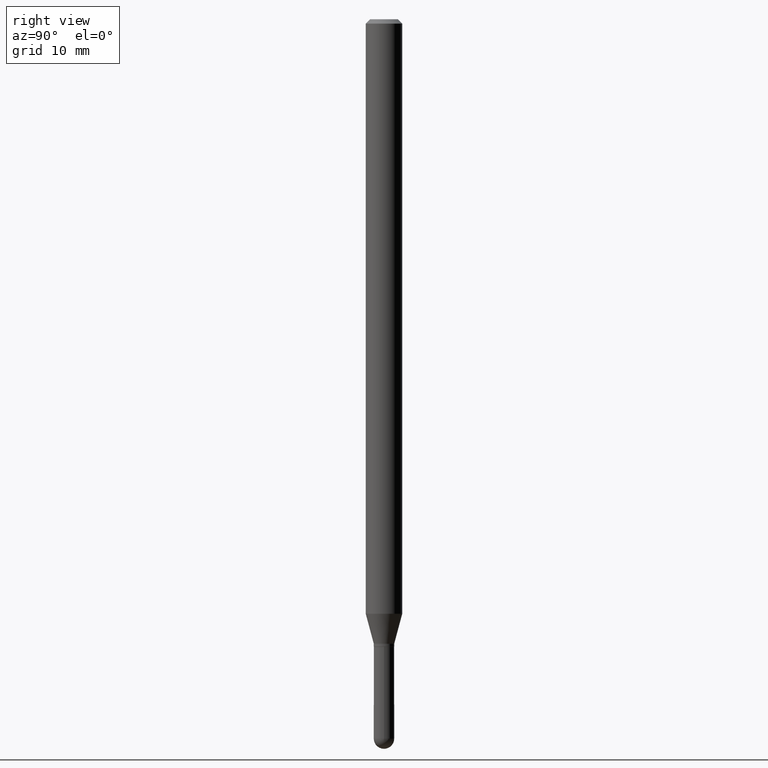
[diagram: clean part render]
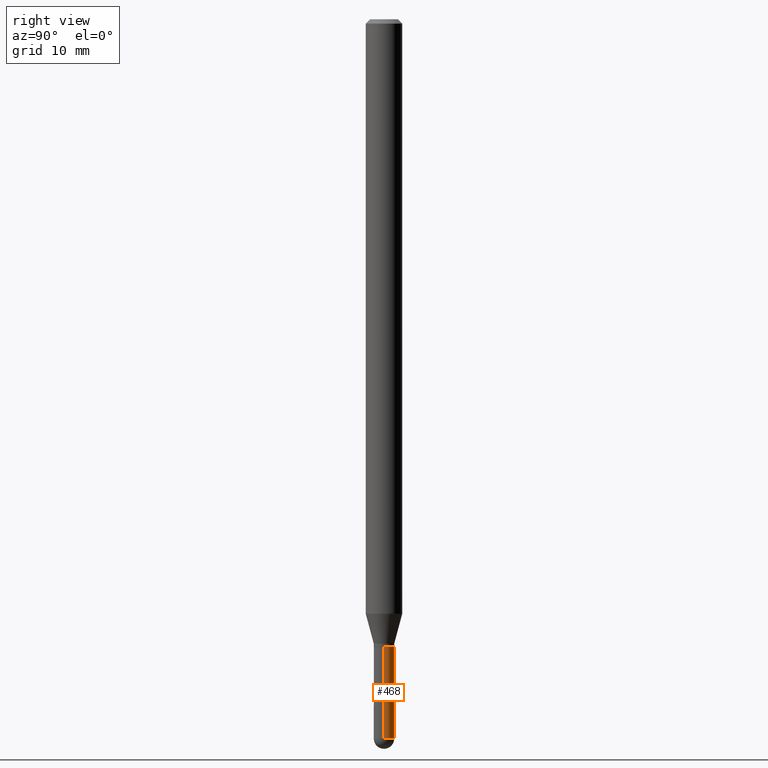
[diagram: same view with one face highlighted and labeled with its STEP entity id]
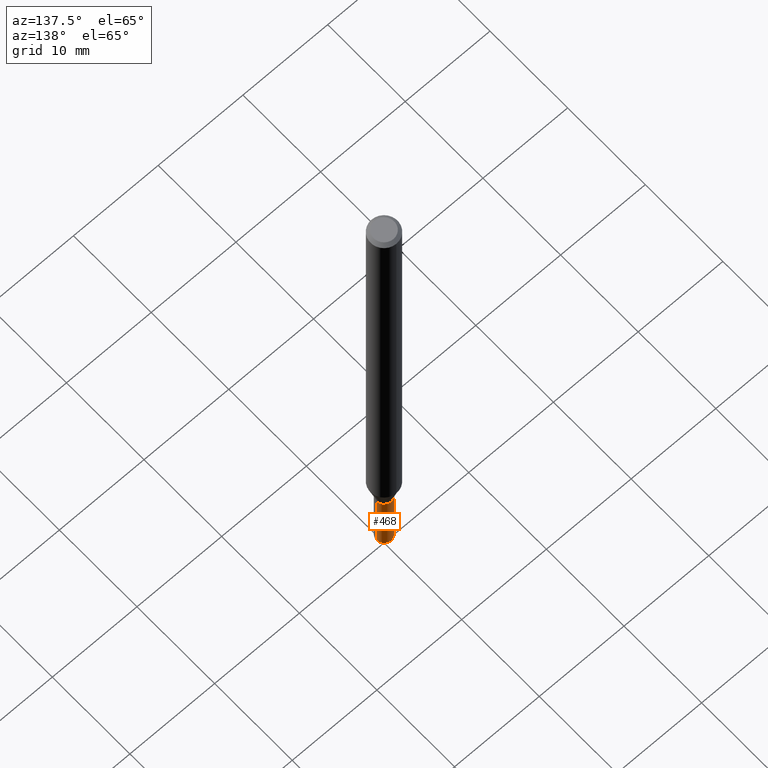
[diagram: same view with one face highlighted and labeled with its STEP entity id]
A machine part, right view. The second image highlights one B-rep face of the part: STEP entity #468.
A second angle (auxiliary view) of the same face is appended — the face is thin or edge-on in the first view.
In plain terms, the highlighted cylindrical surface (edge-blend (fillet) strip) has radius 0.889 mm, axis along (-0, 0, 1).
Its self-contained STEP definition (entity closure, byte-faithful):
#14 = VERTEX_POINT ( 'NONE', #160 ) ;
#17 = ORIENTED_EDGE ( 'NONE', *, *, #63, .T. ) ;
#21 = CIRCLE ( 'NONE', #248, 0.03500000000000000333 ) ;
#30 = LINE ( 'NONE', #185, #233 ) ;
#45 = ORIENTED_EDGE ( 'NONE', *, *, #245, .F. ) ;
#46 = LINE ( 'NONE', #403, #100 ) ;
#63 = EDGE_CURVE ( 'NONE', #488, #496, #46, .T. ) ;
#81 = CARTESIAN_POINT ( 'NONE',  ( -0.03500000000000000333, -7.807903231864523961E-15, -2.150000000000000355 ) ) ;
#100 = VECTOR ( 'NONE', #212, 39.37007874015748143 ) ;
#137 = DIRECTION ( 'NONE',  ( 1.000000000000000000, -6.982962677686248567E-15, 0.000000000000000000 ) ) ;
#141 = DIRECTION ( 'NONE',  ( -2.445468806185136597E-29, 3.491481338843145583E-15, 1.000000000000000000 ) ) ;
#151 = AXIS2_PLACEMENT_3D ( 'NONE', #264, #298, #381 ) ;
#152 = DIRECTION ( 'NONE',  ( -2.445468806185136877E-29, 3.491481338843145188E-15, 1.000000000000000000 ) ) ;
#157 = CIRCLE ( 'NONE', #291, 0.03500000000000000333 ) ;
#159 = DIRECTION ( 'NONE',  ( 1.000000000000000000, -6.982962677686265922E-15, 4.876176775795936353E-29 ) ) ;
#160 = CARTESIAN_POINT ( 'NONE',  ( 0.03500000000000000333, -8.300996883099578424E-15, -2.464999999999999858 ) ) ;
#163 = VERTEX_POINT ( 'NONE', #393 ) ;
#176 = FACE_OUTER_BOUND ( 'NONE', #441, .T. ) ;
#181 = CYLINDRICAL_SURFACE ( 'NONE', #273, 0.03500000000000000333 ) ;
#185 = CARTESIAN_POINT ( 'NONE',  ( 0.03500000000000000333, -2.444036937190193250E-16, 1.706661871528577808E-30 ) ) ;
#205 = ORIENTED_EDGE ( 'NONE', *, *, #364, .T. ) ;
#212 = DIRECTION ( 'NONE',  ( -2.445468806185136877E-29, 3.491481338843145188E-15, 1.000000000000000000 ) ) ;
#214 = ORIENTED_EDGE ( 'NONE', *, *, #503, .T. ) ;
#218 = CARTESIAN_POINT ( 'NONE',  ( 6.028080607246362204E-29, -8.606501500248354960E-15, -2.464999999999999858 ) ) ;
#220 = ORIENTED_EDGE ( 'NONE', *, *, #275, .F. ) ;
#233 = VECTOR ( 'NONE', #152, 39.37007874015748143 ) ;
#234 = DIRECTION ( 'NONE',  ( -2.445468806185136597E-29, 3.491481338843145583E-15, 1.000000000000000000 ) ) ;
#242 = CARTESIAN_POINT ( 'NONE',  ( -0.03500000000000000333, -7.807903231864523961E-15, -2.464999999999999858 ) ) ;
#245 = EDGE_CURVE ( 'NONE', #366, #496, #21, .T. ) ;
#248 = AXIS2_PLACEMENT_3D ( 'NONE', #348, #266, #263 ) ;
#263 = DIRECTION ( 'NONE',  ( 1.000000000000000000, -6.982962677686276966E-15, 0.000000000000000000 ) ) ;
#264 = CARTESIAN_POINT ( 'NONE',  ( 6.028080607246362204E-29, -8.606501500248354960E-15, -2.464999999999999858 ) ) ;
#266 = DIRECTION ( 'NONE',  ( -2.445468806185136597E-29, 3.491481338843145583E-15, 1.000000000000000000 ) ) ;
#273 = AXIS2_PLACEMENT_3D ( 'NONE', #499, #141, #159 ) ;
#275 = EDGE_CURVE ( 'NONE', #14, #366, #30, .T. ) ;
#291 = AXIS2_PLACEMENT_3D ( 'NONE', #218, #234, #137 ) ;
#298 = DIRECTION ( 'NONE',  ( -2.445468806185136597E-29, 3.491481338843145583E-15, 1.000000000000000000 ) ) ;
#348 = CARTESIAN_POINT ( 'NONE',  ( 5.257757933298044131E-29, -7.506684878512763535E-15, -2.150000000000000355 ) ) ;
#352 = CARTESIAN_POINT ( 'NONE',  ( 0.03500000000000000333, -7.751088572231783501E-15, -2.150000000000000355 ) ) ;
#364 = EDGE_CURVE ( 'NONE', #163, #488, #417, .T. ) ;
#366 = VERTEX_POINT ( 'NONE', #352 ) ;
#381 = DIRECTION ( 'NONE',  ( 1.000000000000000000, -6.982962677686248567E-15, 0.000000000000000000 ) ) ;
#393 = CARTESIAN_POINT ( 'NONE',  ( 2.444036937190786868E-16, 0.03499999999999126726, -2.464999999999999858 ) ) ;
#403 = CARTESIAN_POINT ( 'NONE',  ( -0.03500000000000000333, 2.486899575160350887E-16, -1.721627281589217108E-30 ) ) ;
#417 = CIRCLE ( 'NONE', #151, 0.03500000000000000333 ) ;
#441 = EDGE_LOOP ( 'NONE', ( #205, #17, #45, #220, #214 ) ) ;
#468 = ADVANCED_FACE ( 'NONE', ( #176 ), #181, .T. ) ;
#488 = VERTEX_POINT ( 'NONE', #242 ) ;
#496 = VERTEX_POINT ( 'NONE', #81 ) ;
#499 = CARTESIAN_POINT ( 'NONE',  ( 0.000000000000000000, 0.000000000000000000, 0.000000000000000000 ) ) ;
#503 = EDGE_CURVE ( 'NONE', #14, #163, #157, .T. ) ;